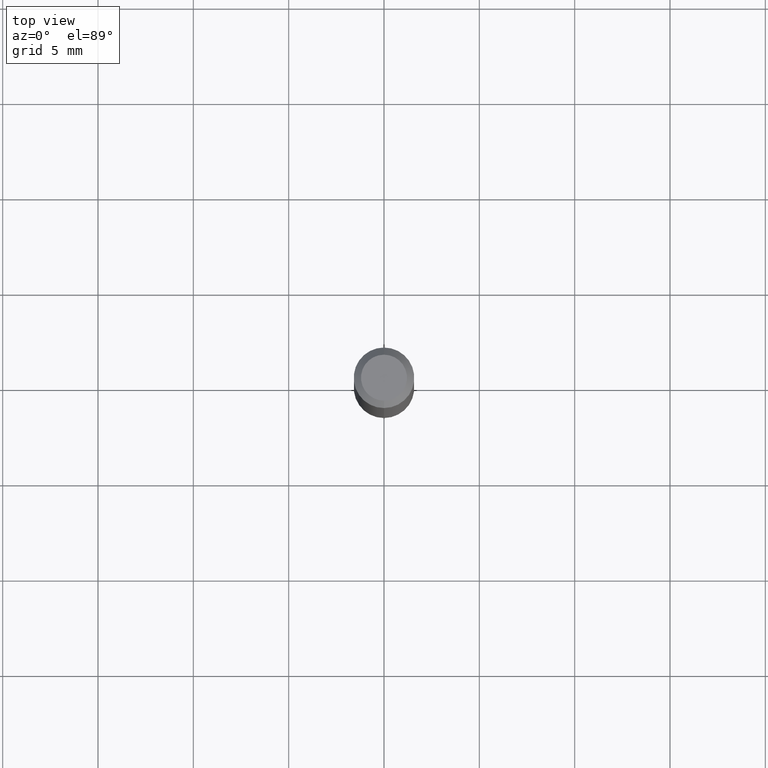
[diagram: clean part render]
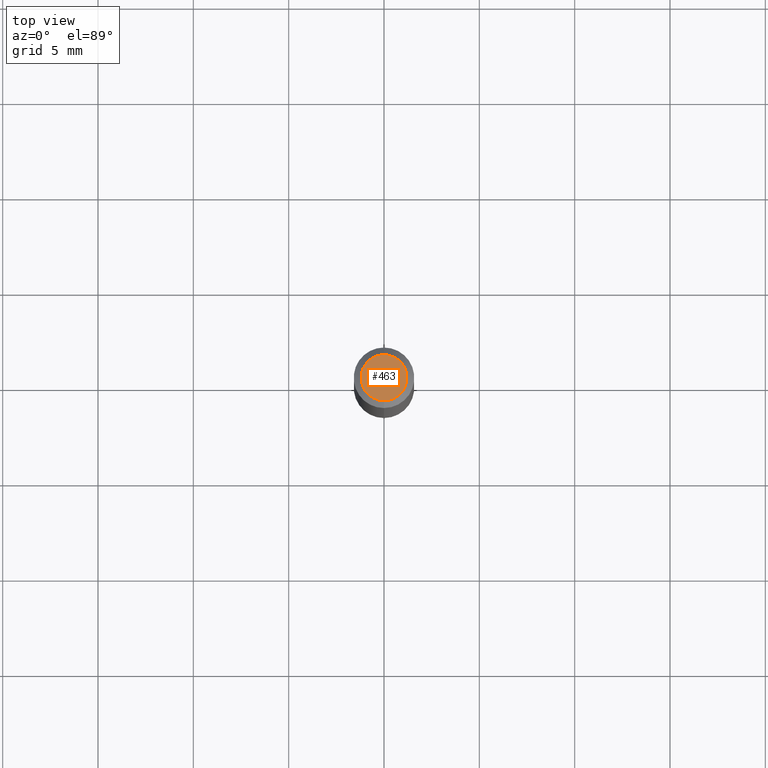
[diagram: same view with one face highlighted and labeled with its STEP entity id]
A machine part, top view. The second image highlights one B-rep face of the part: STEP entity #463.
In plain terms, the highlighted planar face has unit normal (0, -0, -1).
Its self-contained STEP definition (entity closure, byte-faithful):
#5 = PLANE ( 'NONE',  #325 ) ;
#28 = CARTESIAN_POINT ( 'NONE',  ( 3.840629472727447874E-16, 0.04749999999999999362, -1.747056831868805136E-16 ) ) ;
#36 = EDGE_CURVE ( 'NONE', #256, #410, #104, .T. ) ;
#104 = CIRCLE ( 'NONE', #441, 0.04749999999999999362 ) ;
#112 = DIRECTION ( 'NONE',  ( -2.445459900832520260E-29, 3.491494091814953500E-15, 1.000000000000000000 ) ) ;
#148 = EDGE_LOOP ( 'NONE', ( #347, #424 ) ) ;
#150 = DIRECTION ( 'NONE',  ( -6.982962677686266711E-15, -1.000000000000000000, 3.491494091814954289E-15 ) ) ;
#153 = CARTESIAN_POINT ( 'NONE',  ( 3.316907271900976096E-16, 0.04749999999999999362, -1.702758262740453827E-16 ) ) ;
#157 = FACE_OUTER_BOUND ( 'NONE', #148, .T. ) ;
#191 = DIRECTION ( 'NONE',  ( 2.445459900832519979E-29, -3.491494091814953500E-15, -1.000000000000000000 ) ) ;
#249 = CARTESIAN_POINT ( 'NONE',  ( -3.773273898774340269E-16, -0.04749999999999999362, 1.569862555355400639E-16 ) ) ;
#256 = VERTEX_POINT ( 'NONE', #28 ) ;
#268 = DIRECTION ( 'NONE',  ( -6.982962677686266711E-15, -1.000000000000000000, 3.491494091814954289E-15 ) ) ;
#302 = CARTESIAN_POINT ( 'NONE',  ( 2.166607489352802238E-46, -3.093363847749885261E-32, -8.859713825670226397E-18 ) ) ;
#325 = AXIS2_PLACEMENT_3D ( 'NONE', #153, #191, #348 ) ;
#331 = AXIS2_PLACEMENT_3D ( 'NONE', #464, #112, #268 ) ;
#347 = ORIENTED_EDGE ( 'NONE', *, *, #36, .T. ) ;
#348 = DIRECTION ( 'NONE',  ( 6.982962677686265922E-15, 1.000000000000000000, -3.491494091814953500E-15 ) ) ;
#410 = VERTEX_POINT ( 'NONE', #249 ) ;
#423 = DIRECTION ( 'NONE',  ( -2.445459900832520260E-29, 3.491494091814953500E-15, 1.000000000000000000 ) ) ;
#424 = ORIENTED_EDGE ( 'NONE', *, *, #493, .T. ) ;
#441 = AXIS2_PLACEMENT_3D ( 'NONE', #302, #423, #150 ) ;
#463 = ADVANCED_FACE ( 'NONE', ( #157 ), #5, .F. ) ;
#464 = CARTESIAN_POINT ( 'NONE',  ( 2.166607489352802238E-46, -3.093363847749885261E-32, -8.859713825670226397E-18 ) ) ;
#493 = EDGE_CURVE ( 'NONE', #410, #256, #497, .T. ) ;
#497 = CIRCLE ( 'NONE', #331, 0.04749999999999999362 ) ;